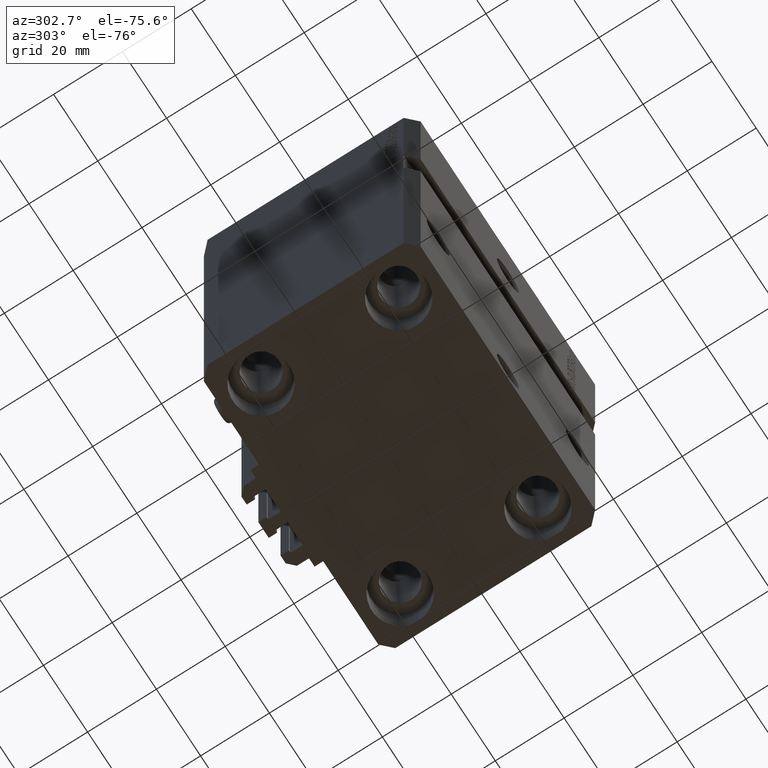
[diagram: clean part render]
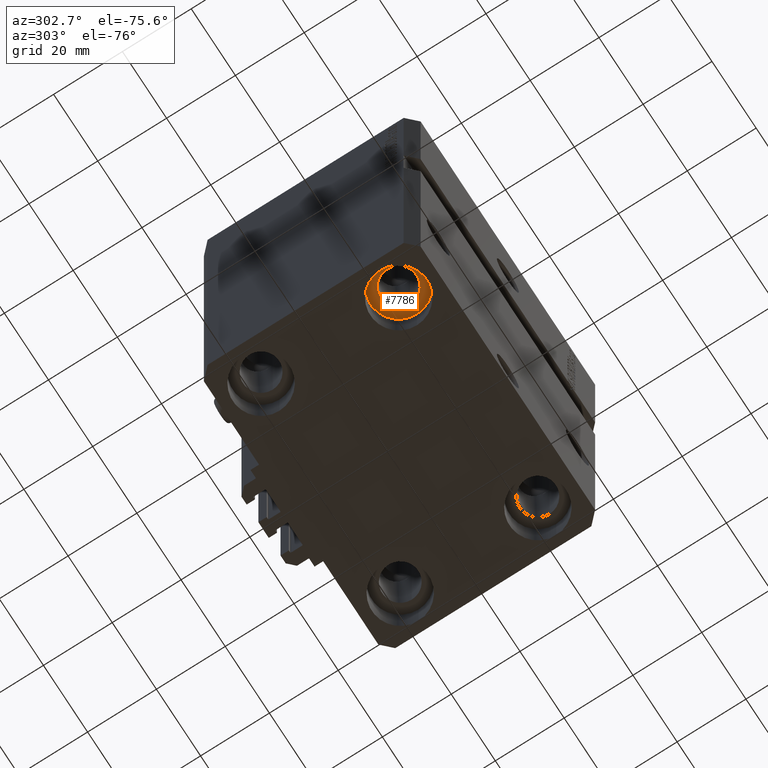
[diagram: same view with one face highlighted and labeled with its STEP entity id]
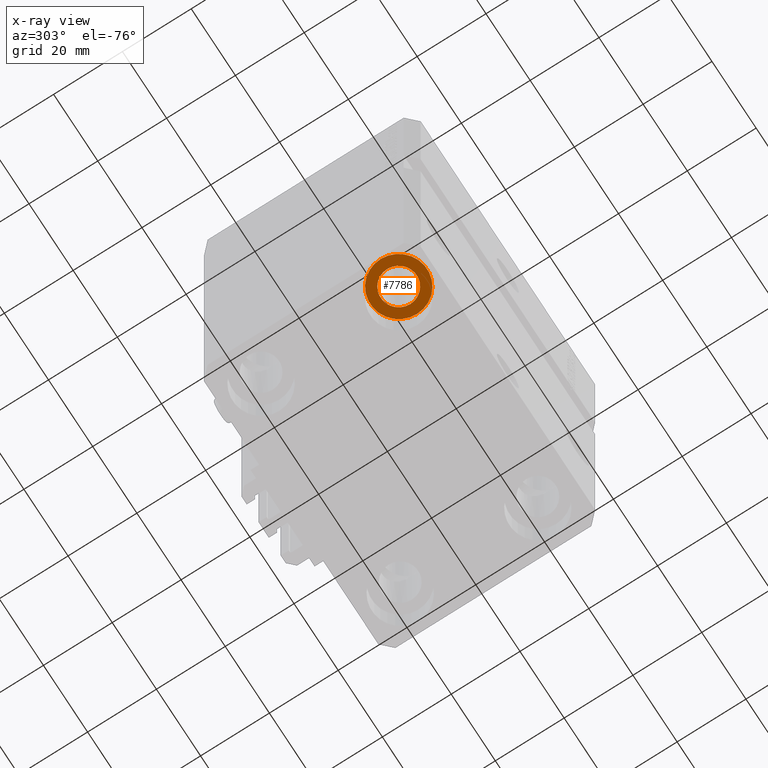
[diagram: x-ray of the same camera — body ghosted, the highlighted face saturated]
A machine part, auxiliary view. The second image highlights one B-rep face of the part: STEP entity #7786.
The next image is the same camera in x-ray: the body ghosted, the highlighted face saturated — about 0% of this face is hidden behind the body in this view.
In plain terms, the highlighted planar face has unit normal (0, 0, -1).
Its self-contained STEP definition (entity closure, byte-faithful):
#1908 = CARTESIAN_POINT ( 'NONE',  ( -39.75000000000000000, -20.00000000000000000, -112.0000000000000000 ) ) ;
#2249 = FACE_BOUND ( 'NONE', #38629, .T. ) ;
#2376 = DIRECTION ( 'NONE',  ( 1.000000000000000000, 0.000000000000000000, 0.000000000000000000 ) ) ;
#6169 = DIRECTION ( 'NONE',  ( 1.000000000000000000, 0.000000000000000000, 0.000000000000000000 ) ) ;
#6399 = DIRECTION ( 'NONE',  ( 0.000000000000000000, 0.000000000000000000, -1.000000000000000000 ) ) ;
#6619 = ORIENTED_EDGE ( 'NONE', *, *, #28562, .F. ) ;
#7786 = ADVANCED_FACE ( 'NONE', ( #2249, #39736 ), #44070, .T. ) ;
#8811 = DIRECTION ( 'NONE',  ( -1.000000000000000000, 0.000000000000000000, 0.000000000000000000 ) ) ;
#9367 = CARTESIAN_POINT ( 'NONE',  ( -36.75000000000000000, -20.00000000000000000, -112.0000000000000000 ) ) ;
#10780 = CARTESIAN_POINT ( 'NONE',  ( -31.50000000000000000, -20.00000000000000000, -112.0000000000000000 ) ) ;
#15525 = AXIS2_PLACEMENT_3D ( 'NONE', #17570, #6399, #6169 ) ;
#15968 = CIRCLE ( 'NONE', #27631, 5.249999999999997335 ) ;
#16215 = EDGE_LOOP ( 'NONE', ( #36449, #6619 ) ) ;
#16493 = CARTESIAN_POINT ( 'NONE',  ( -31.50000000000000000, -20.00000000000000000, -112.0000000000000000 ) ) ;
#16871 = ORIENTED_EDGE ( 'NONE', *, *, #26091, .F. ) ;
#17221 = DIRECTION ( 'NONE',  ( -0.000000000000000000, -0.000000000000000000, 1.000000000000000000 ) ) ;
#17570 = CARTESIAN_POINT ( 'NONE',  ( -31.50000000000000000, -20.00000000000000000, -112.0000000000000000 ) ) ;
#19095 = CIRCLE ( 'NONE', #26869, 5.249999999999997335 ) ;
#20674 = AXIS2_PLACEMENT_3D ( 'NONE', #10780, #26329, #44105 ) ;
#21388 = CIRCLE ( 'NONE', #46273, 8.250000000000000000 ) ;
#26028 = EDGE_CURVE ( 'NONE', #33685, #42515, #39317, .T. ) ;
#26091 = EDGE_CURVE ( 'NONE', #29051, #35494, #19095, .T. ) ;
#26329 = DIRECTION ( 'NONE',  ( -0.000000000000000000, -0.000000000000000000, 1.000000000000000000 ) ) ;
#26563 = DIRECTION ( 'NONE',  ( 0.000000000000000000, 0.000000000000000000, -1.000000000000000000 ) ) ;
#26869 = AXIS2_PLACEMENT_3D ( 'NONE', #27277, #26563, #8811 ) ;
#27277 = CARTESIAN_POINT ( 'NONE',  ( -31.50000000000000000, -20.00000000000000000, -112.0000000000000000 ) ) ;
#27631 = AXIS2_PLACEMENT_3D ( 'NONE', #38107, #30294, #41043 ) ;
#28562 = EDGE_CURVE ( 'NONE', #42515, #33685, #21388, .T. ) ;
#29051 = VERTEX_POINT ( 'NONE', #45872 ) ;
#29111 = EDGE_CURVE ( 'NONE', #35494, #29051, #15968, .T. ) ;
#30294 = DIRECTION ( 'NONE',  ( 0.000000000000000000, 0.000000000000000000, -1.000000000000000000 ) ) ;
#33685 = VERTEX_POINT ( 'NONE', #1908 ) ;
#35494 = VERTEX_POINT ( 'NONE', #9367 ) ;
#36449 = ORIENTED_EDGE ( 'NONE', *, *, #26028, .F. ) ;
#38107 = CARTESIAN_POINT ( 'NONE',  ( -31.50000000000000000, -20.00000000000000000, -112.0000000000000000 ) ) ;
#38629 = EDGE_LOOP ( 'NONE', ( #16871, #42032 ) ) ;
#39317 = CIRCLE ( 'NONE', #20674, 8.250000000000000000 ) ;
#39736 = FACE_OUTER_BOUND ( 'NONE', #16215, .T. ) ;
#40181 = CARTESIAN_POINT ( 'NONE',  ( -23.25000000000000000, -20.00000000000000000, -112.0000000000000000 ) ) ;
#41043 = DIRECTION ( 'NONE',  ( -1.000000000000000000, 0.000000000000000000, 0.000000000000000000 ) ) ;
#42032 = ORIENTED_EDGE ( 'NONE', *, *, #29111, .F. ) ;
#42515 = VERTEX_POINT ( 'NONE', #40181 ) ;
#44070 = PLANE ( 'NONE',  #15525 ) ;
#44105 = DIRECTION ( 'NONE',  ( 1.000000000000000000, 0.000000000000000000, 0.000000000000000000 ) ) ;
#45872 = CARTESIAN_POINT ( 'NONE',  ( -26.25000000000000000, -20.00000000000000000, -112.0000000000000000 ) ) ;
#46273 = AXIS2_PLACEMENT_3D ( 'NONE', #16493, #17221, #2376 ) ;